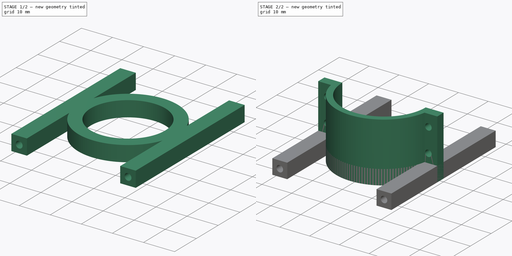
[diagram: build sequence overview — one tinted view per stage of 2, left to right]
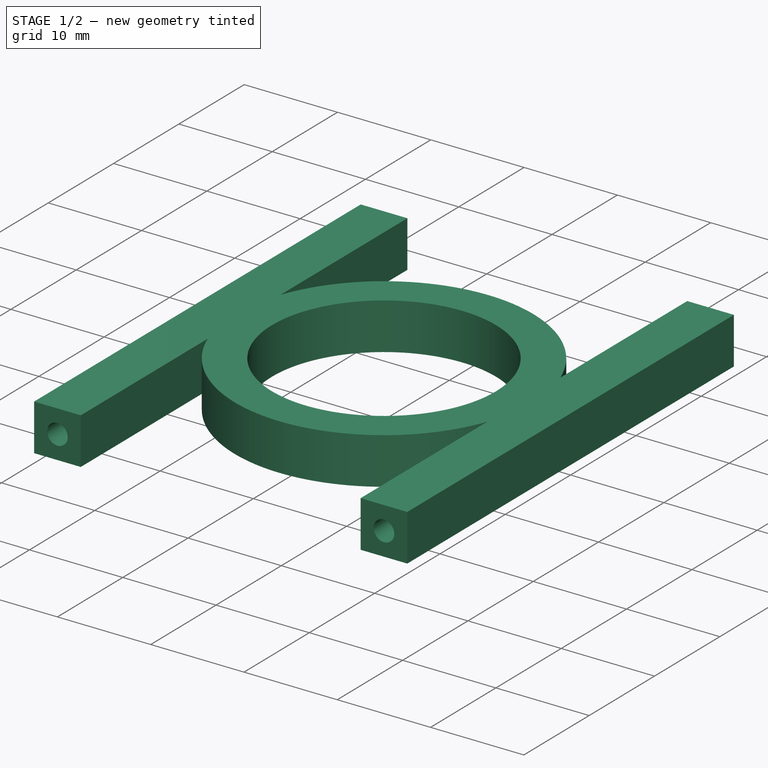
[diagram: stage 1 of 2 — iso view after this stage's code; geometry added in this stage tinted green]
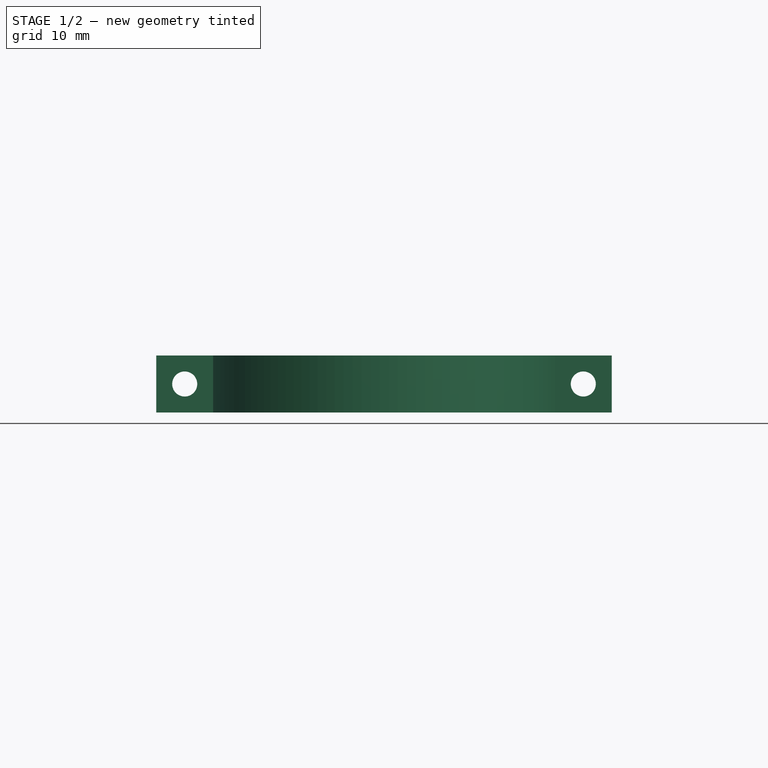
[diagram: stage 1 of 2 — front view after this stage's code; geometry added in this stage tinted green]
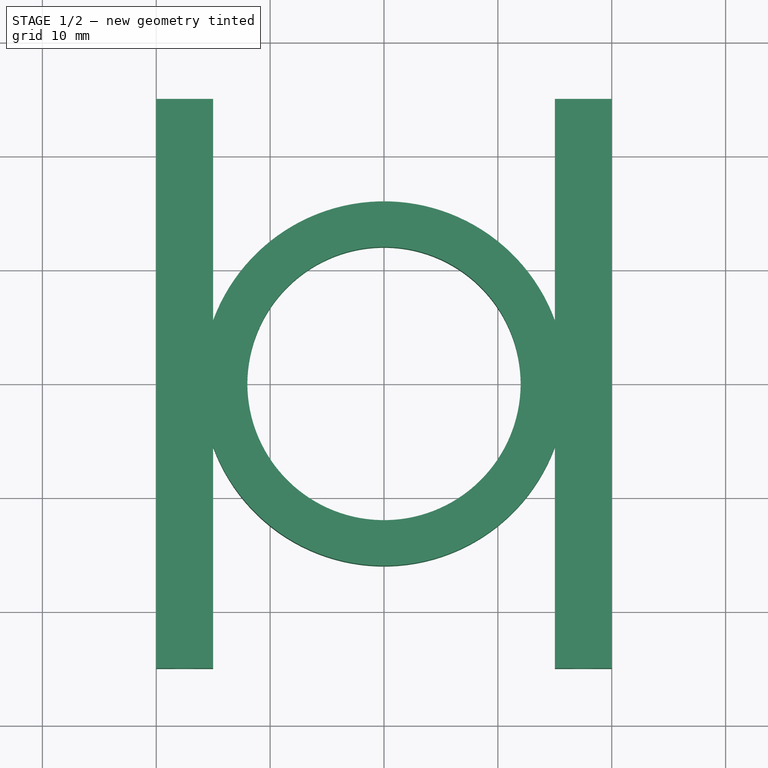
[diagram: stage 1 of 2 — top view after this stage's code; geometry added in this stage tinted green]
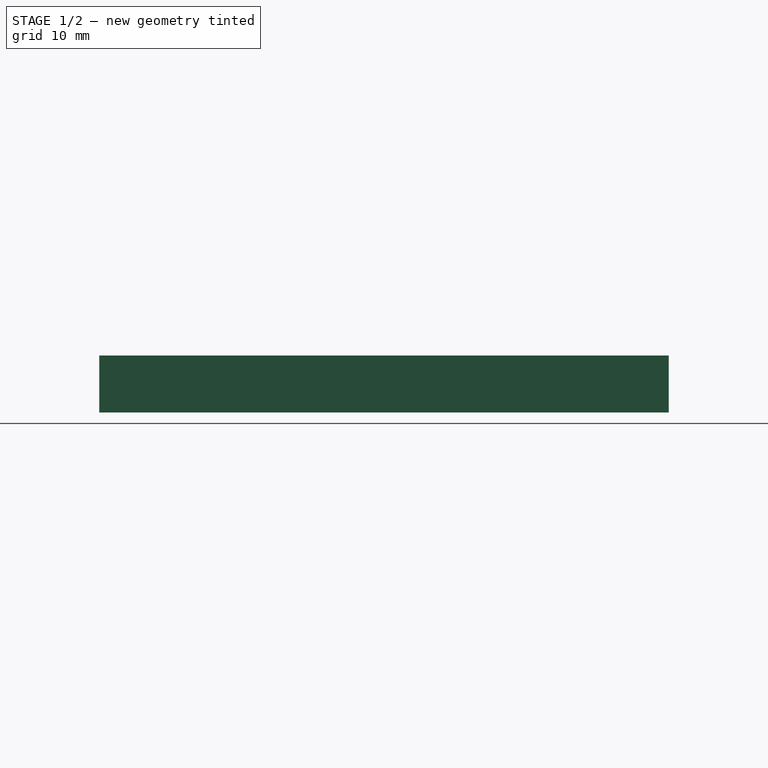
[diagram: stage 1 of 2 — right view after this stage's code; geometry added in this stage tinted green]
FCSTD DOCUMENT  (FreeCAD 0.15R4671 (Git))
Label: hub2_no_union
License: All rights reserved
LicenseURL: http://en.wikipedia.org/wiki/All_rights_reserved
objects: Sketcher::SketchObject×4, PartDesign::Pad×2, PartDesign::Pocket×2
note: 12 computed .brp shape members not serialized (recipe doc carries the construction recipe); baked Part::Feature solids carry a one-line shape summary decoded from their .brp

FEATURE [Sketcher::SketchObject] Sketch
  sketch-geometry (13):
    g0: LineSegment StartX=-20 StartY=25 StartZ=0 EndX=-20 EndY=-25 EndZ=0
    g1: LineSegment StartX=-20 StartY=-25 StartZ=0 EndX=-15 EndY=-25 EndZ=0
    g2: LineSegment StartX=-15 StartY=-25 StartZ=0 EndX=-15 EndY=-5.56776 EndZ=0
    g3: LineSegment StartX=-20 StartY=25 StartZ=0 EndX=-15 EndY=25 EndZ=0
    g4: LineSegment StartX=-15 StartY=25 StartZ=0 EndX=-15 EndY=5.56776 EndZ=0
    g5: LineSegment StartX=15 StartY=5.56776 StartZ=0 EndX=15 EndY=25 EndZ=0
    g6: LineSegment StartX=15 StartY=25 StartZ=0 EndX=20 EndY=25 EndZ=0
    g7: LineSegment StartX=20 StartY=25 StartZ=0 EndX=20 EndY=-25 EndZ=0
    g8: LineSegment StartX=20 StartY=-25 StartZ=0 EndX=15 EndY=-25 EndZ=0
    g9: LineSegment StartX=15 StartY=-25 StartZ=0 EndX=15 EndY=-5.56776 EndZ=0
    g10: ArcOfCircle CenterX=0 CenterY=0 CenterZ=0 NormalX=0 NormalY=0 NormalZ=1 Radius=16 StartAngle=0.355421 EndAngle=2.78617
    g11: Circle CenterX=0 CenterY=0 CenterZ=0 NormalX=0 NormalY=0 NormalZ=1 Radius=12
    g12: ArcOfCircle CenterX=0 CenterY=0 CenterZ=0 NormalX=0 NormalY=0 NormalZ=1 Radius=16 StartAngle=3.49701 EndAngle=5.92776
  constraints (38):
    c: Coincident(g0,g1)
    c: Horizontal(g1)
    c: Coincident(g1,g2)
    c: Vertical(g2)
    c: Coincident(g0,g3)
    c: Horizontal(g3)
    c: Coincident(g3,g4)
    c: Vertical(g4)
    c: Vertical(g5)
    c: Coincident(g5,g6)
    c: Horizontal(g6)
    c: Coincident(g6,g7)
    c: Vertical(g7)
    c: Coincident(g7,g8)
    c: Horizontal(g8)
    c: Coincident(g8,g9)
    c: Vertical(g9)
    c: Equal(g6,g3)
    c: Equal(g3,g1)
    c: Equal(g1,g8)
    c: Equal(g2,g9)
    c: Symmetric(g1,g8,g-2)
    c: Equal(g4,g5)
    c: DistanceX(g-1,g0) = -20
    c: Distance(g3) = 5
    c: Distance(g0) = 50
    c: Symmetric(g0,g0,g-1)
    c: Coincident(g10,g4)
    c: Coincident(g10,g5)
    c: Coincident(g11,g-1)
    c: Coincident(g10,g-1)
    c: Coincident(g12,g2)
    c: Coincident(g12,g9)
    c: Symmetric(g2,g4,g-1)
    c: Symmetric(g5,g9,g-1)
    c: Radius(g11) = 12
    c: Radius(g10) = 16
    c: Equal(g10,g12)
FEATURE [PartDesign::Pad] Pad
  Length = 5
  Length2 = 100
  Sketch = -> Sketch
  Type = 0
FEATURE [Sketcher::SketchObject] Sketch003  label="FastenerHoles"
  ExternalGeometry = -> [Pad]
  Placement = pos=(0,25,0) rot=(0,0.707107,0.707107;3.14159rad)
  Support = -> Pad [Face3]
  sketch-geometry (4):
    g0: LineSegment [constr] StartX=-20 StartY=0 StartZ=0 EndX=-15 EndY=5 EndZ=0
    g1: LineSegment [constr] StartX=-20 StartY=5 StartZ=0 EndX=-15 EndY=0 EndZ=0
    g2: Circle CenterX=-17.5 CenterY=2.5 CenterZ=0 NormalX=0 NormalY=0 NormalZ=1 Radius=1.1
    g3: Circle CenterX=17.5 CenterY=2.5 CenterZ=0 NormalX=0 NormalY=0 NormalZ=1 Radius=1.1
  constraints (9):
    c: Coincident(g0,g-5)
    c: Coincident(g0,g-3)
    c: Coincident(g1,g-3)
    c: Coincident(g1,g-5)
    c: PointOnObject(g2,g1)
    c: PointOnObject(g2,g0)
    c: Radius(g2) = 1.1
    c: Symmetric(g2,g3,g-2)
    c: Equal(g3,g2)
FEATURE [PartDesign::Pocket] Pocket001  label="FastenerHolesPocket"
  Length = 5
  Sketch = -> Sketch003
  Type = 1
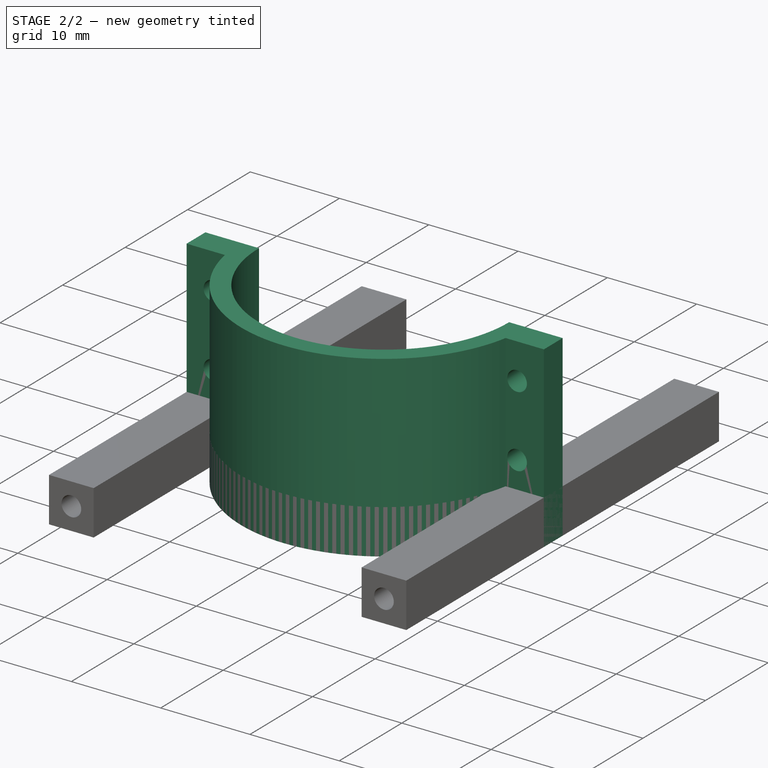
[diagram: stage 2 of 2 — iso view after this stage's code; geometry added in this stage tinted green]
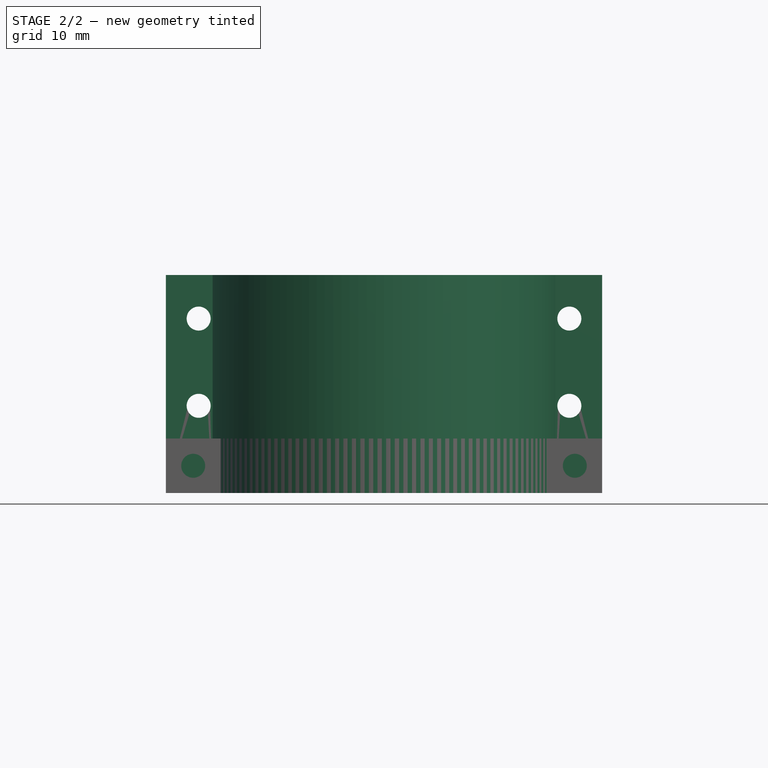
[diagram: stage 2 of 2 — front view after this stage's code; geometry added in this stage tinted green]
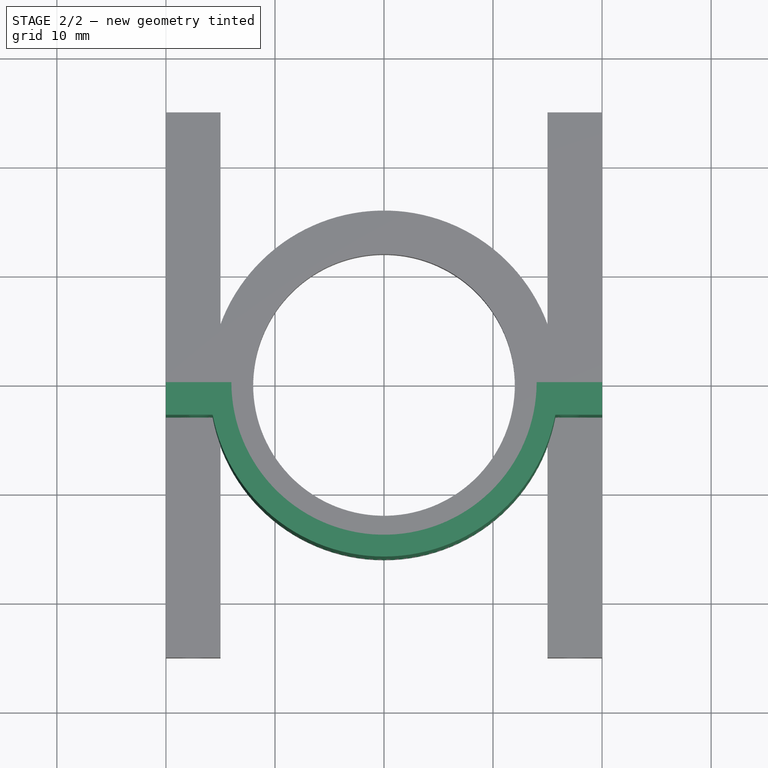
[diagram: stage 2 of 2 — top view after this stage's code; geometry added in this stage tinted green]
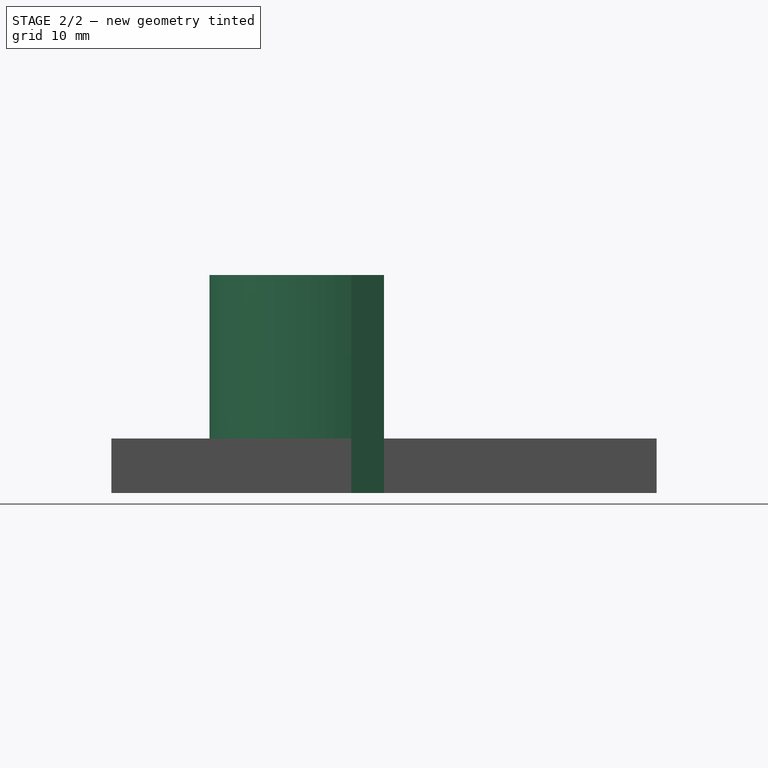
[diagram: stage 2 of 2 — right view after this stage's code; geometry added in this stage tinted green]
FEATURE [Sketcher::SketchObject] Sketch001  label="Profile"
  sketch-geometry (8):
    g0: LineSegment StartX=-15.7162 StartY=-3 StartZ=0 EndX=-20 EndY=-3 EndZ=0
    g1: LineSegment StartX=-20 StartY=-3 StartZ=0 EndX=-20 EndY=0 EndZ=0
    g2: LineSegment StartX=20 StartY=0 StartZ=0 EndX=20 EndY=-3 EndZ=0
    g3: LineSegment StartX=20 StartY=-3 StartZ=0 EndX=15.7162 EndY=-3 EndZ=0
    g4: ArcOfCircle CenterX=0 CenterY=0 CenterZ=0 NormalX=0 NormalY=0 NormalZ=1 Radius=16 StartAngle=3.33021 EndAngle=6.09457
    g5: ArcOfCircle CenterX=0 CenterY=0 CenterZ=0 NormalX=0 NormalY=0 NormalZ=1 Radius=14 StartAngle=3.14159 EndAngle=6.28319
    g6: LineSegment StartX=-20 StartY=0 StartZ=0 EndX=-14 EndY=0 EndZ=0
    g7: LineSegment StartX=14 StartY=0 StartZ=0 EndX=20 EndY=0 EndZ=0
  constraints (23):
    c: Horizontal(g0)
    c: Coincident(g0,g1)
    c: PointOnObject(g1,g-1)
    c: Vertical(g1)
    c: Vertical(g2)
    c: Coincident(g2,g3)
    c: Horizontal(g3)
    c: Symmetric(g1,g2,g-2)
    c: Symmetric(g0,g3,g-2)
    c: Distance(g1) = 3
    c: Coincident(g4,g0)
    c: Coincident(g4,g3)
    c: Coincident(g5,g-1)
    c: Radius(g5) = 14
    c: Coincident(g6,g1)
    c: Coincident(g6,g5)
    c: Horizontal(g6)
    c: PointOnObject(g7,g-1)
    c: Coincident(g7,g2)
    c: DistanceX(g-1,g1) = -20
    c: Radius(g4) = 16
    c: Coincident(g4,g-1)
    c: Coincident(g5,g7)
FEATURE [PartDesign::Pad] Pad001  label="PipeBed"
  Length = 20
  Length2 = 100
  Sketch = -> Sketch001
  Type = 0
FEATURE [Sketcher::SketchObject] Sketch002  label="Holes"
  Placement = pos=(0,0,0) rot=(0,0.707107,0.707107;3.14159rad)
  Support = -> Pad001 [Face5]
  sketch-geometry (8):
    g0: LineSegment [constr] StartX=-17 StartY=16 StartZ=0 EndX=17 EndY=16 EndZ=0
    g1: LineSegment [constr] StartX=17 StartY=16 StartZ=0 EndX=17 EndY=8 EndZ=0
    g2: LineSegment [constr] StartX=17 StartY=8 StartZ=0 EndX=-17 EndY=8 EndZ=0
    g3: LineSegment [constr] StartX=-17 StartY=8 StartZ=0 EndX=-17 EndY=16 EndZ=0
    g4: Circle CenterX=-17 CenterY=16 CenterZ=0 NormalX=0 NormalY=0 NormalZ=1 Radius=1.1
    g5: Circle CenterX=-17 CenterY=8 CenterZ=0 NormalX=0 NormalY=0 NormalZ=1 Radius=1.1
    g6: Circle CenterX=17 CenterY=16 CenterZ=0 NormalX=0 NormalY=0 NormalZ=1 Radius=1.1
    g7: Circle CenterX=17 CenterY=8 CenterZ=0 NormalX=0 NormalY=0 NormalZ=1 Radius=1.1
  constraints (20):
    c: Coincident(g0,g1)
    c: Coincident(g1,g2)
    c: Coincident(g2,g3)
    c: Coincident(g3,g0)
    c: Horizontal(g0)
    c: Horizontal(g2)
    c: Vertical(g1)
    c: Vertical(g3)
    c: Symmetric(g0,g0,g-2)
    c: DistanceY(g-1,g2) = 8
    c: Distance(g2) = 34
    c: Coincident(g4,g0)
    c: Coincident(g5,g2)
    c: Coincident(g6,g0)
    c: Coincident(g7,g1)
    c: Equal(g6,g7)
    c: Equal(g7,g5)
    c: Equal(g5,g4)
    c: Radius(g4) = 1.1
    c: Distance(g3) = 8
FEATURE [PartDesign::Pocket] Pocket  label="FastenerHolesBracket"
  Length = 5
  Sketch = -> Sketch002
  Type = 1
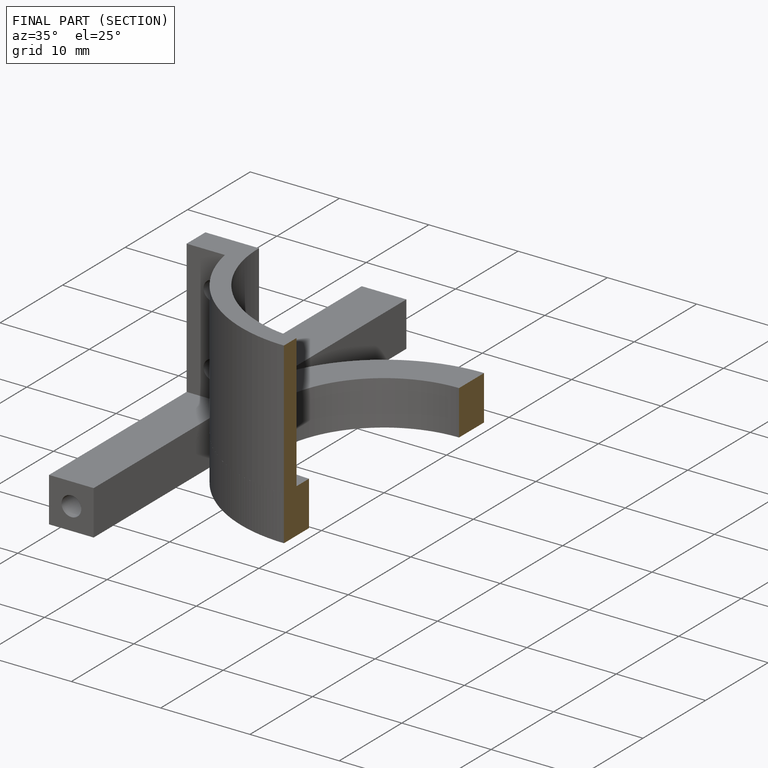
[diagram: finished part — half-section view (interior)]
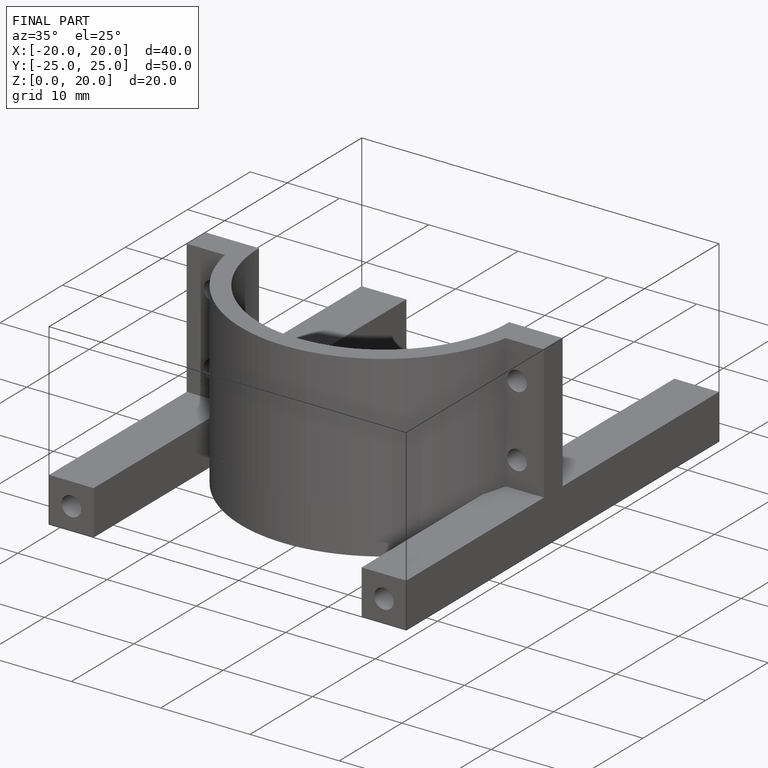
[diagram: finished part — iso view with bounding-box wireframe]
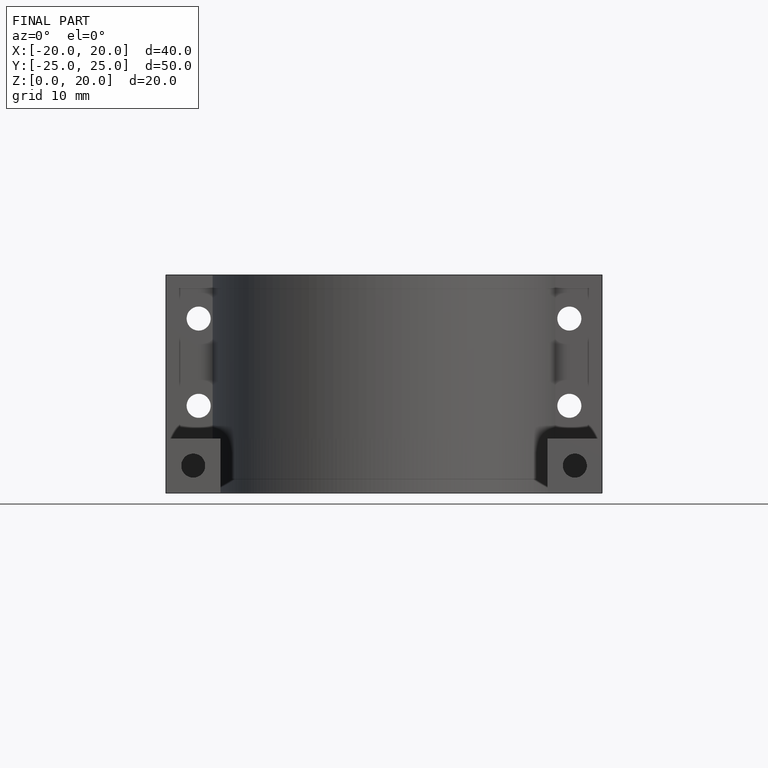
[diagram: finished part — front view with bounding-box wireframe]
